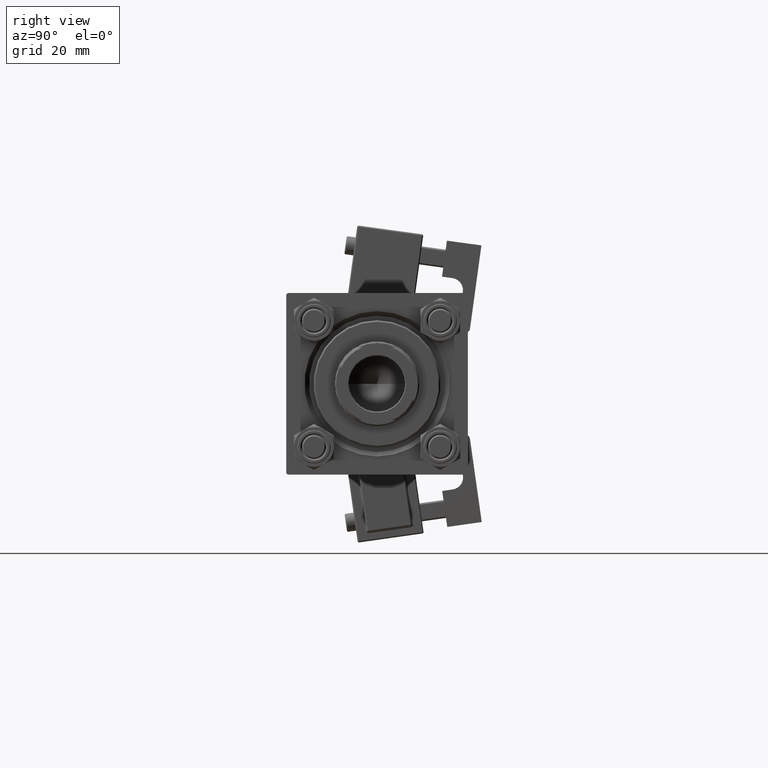
[diagram: clean part render]
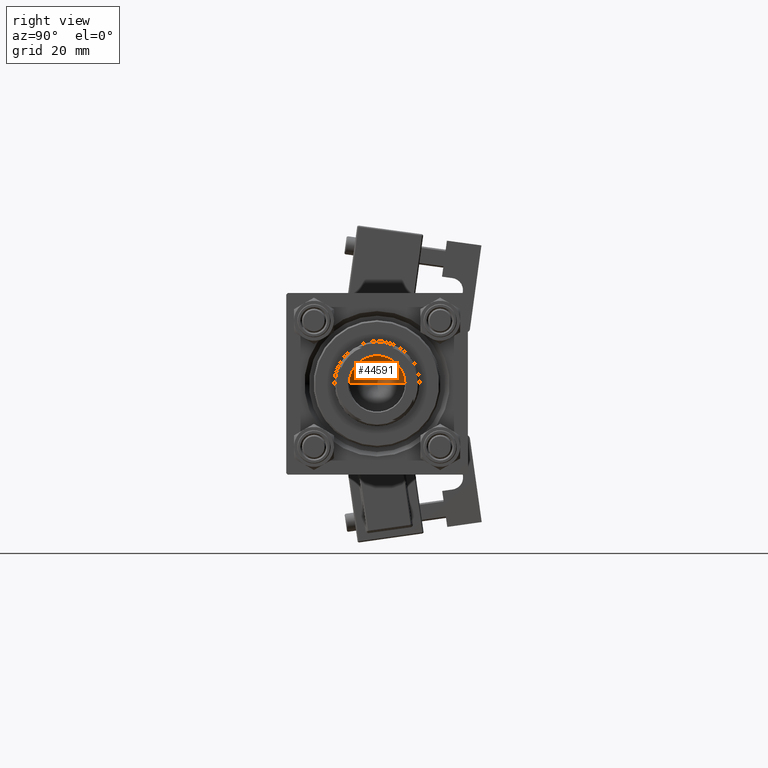
[diagram: same view with one face highlighted and labeled with its STEP entity id]
A machine part, right view. The second image highlights one B-rep face of the part: STEP entity #44591.
In plain terms, the highlighted conical surface has half-angle 59 deg.
Its self-contained STEP definition (entity closure, byte-faithful):
#47 = VERTEX_POINT ( 'NONE', #3798 ) ;
#604 = AXIS2_PLACEMENT_3D ( 'NONE', #33001, #36950, #874 ) ;
#874 = DIRECTION ( 'NONE',  ( 1.000000000000000000, 0.000000000000000000, 0.000000000000000000 ) ) ;
#3798 = CARTESIAN_POINT ( 'NONE',  ( -9.769621978240258809E-15, 0.000000000000000000, 95.44203927399506426 ) ) ;
#4813 = CIRCLE ( 'NONE', #604, 9.249999999999992895 ) ;
#6519 = VERTEX_POINT ( 'NONE', #21724 ) ;
#10286 = EDGE_LOOP ( 'NONE', ( #31715, #17985, #15921 ) ) ;
#11392 = VECTOR ( 'NONE', #40128, 1000.000000000000000 ) ;
#11695 = CARTESIAN_POINT ( 'NONE',  ( 9.249999999999992895, 0.000000000000000000, 101.0000000000000000 ) ) ;
#12197 = DIRECTION ( 'NONE',  ( -0.8571673007021117785, 1.049727191138617956E-16, 0.5150380749100550437 ) ) ;
#15241 = DIRECTION ( 'NONE',  ( 1.000000000000000000, 0.000000000000000000, 0.000000000000000000 ) ) ;
#15921 = ORIENTED_EDGE ( 'NONE', *, *, #47547, .T. ) ;
#17434 = CARTESIAN_POINT ( 'NONE',  ( 0.000000000000000000, 0.000000000000000000, 101.0000000000000000 ) ) ;
#17985 = ORIENTED_EDGE ( 'NONE', *, *, #23539, .T. ) ;
#18539 = VECTOR ( 'NONE', #12197, 1000.000000000000000 ) ;
#20606 = CARTESIAN_POINT ( 'NONE',  ( -9.249999999999992895, 1.132798289211300712E-15, 101.0000000000000000 ) ) ;
#20675 = CARTESIAN_POINT ( 'NONE',  ( -9.249999999999992895, 1.132798289211300712E-15, 101.0000000000000000 ) ) ;
#20868 = LINE ( 'NONE', #20606, #18539 ) ;
#21724 = CARTESIAN_POINT ( 'NONE',  ( 9.249999999999992895, 0.000000000000000000, 101.0000000000000000 ) ) ;
#23539 = EDGE_CURVE ( 'NONE', #47, #45066, #20868, .T. ) ;
#30256 = DIRECTION ( 'NONE',  ( -0.000000000000000000, -0.000000000000000000, 1.000000000000000000 ) ) ;
#31715 = ORIENTED_EDGE ( 'NONE', *, *, #41841, .F. ) ;
#32450 = CONICAL_SURFACE ( 'NONE', #34962, 9.249999999999992895, 1.029744258676653423 ) ;
#33001 = CARTESIAN_POINT ( 'NONE',  ( 0.000000000000000000, 0.000000000000000000, 101.0000000000000000 ) ) ;
#34962 = AXIS2_PLACEMENT_3D ( 'NONE', #17434, #30256, #15241 ) ;
#36950 = DIRECTION ( 'NONE',  ( -0.000000000000000000, -0.000000000000000000, 1.000000000000000000 ) ) ;
#39617 = LINE ( 'NONE', #11695, #11392 ) ;
#40128 = DIRECTION ( 'NONE',  ( 0.8571673007021117785, 0.000000000000000000, 0.5150380749100550437 ) ) ;
#41841 = EDGE_CURVE ( 'NONE', #47, #6519, #39617, .T. ) ;
#44591 = ADVANCED_FACE ( 'NONE', ( #51310 ), #32450, .F. ) ;
#45066 = VERTEX_POINT ( 'NONE', #20675 ) ;
#47547 = EDGE_CURVE ( 'NONE', #45066, #6519, #4813, .T. ) ;
#51310 = FACE_OUTER_BOUND ( 'NONE', #10286, .T. ) ;